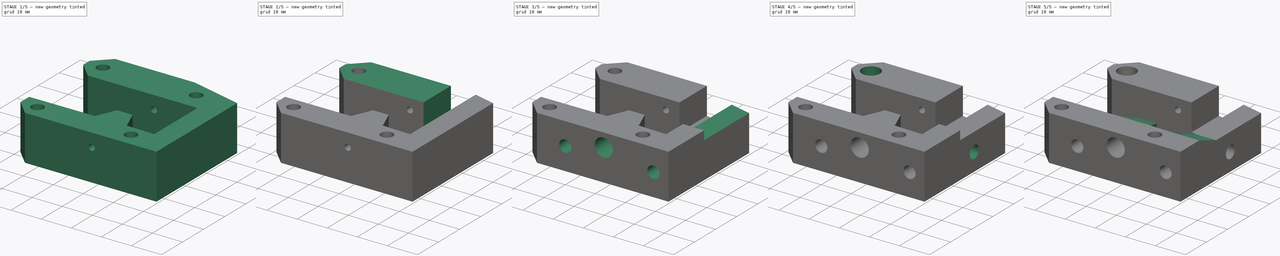
[diagram: build sequence overview — one tinted view per stage of 5, left to right]
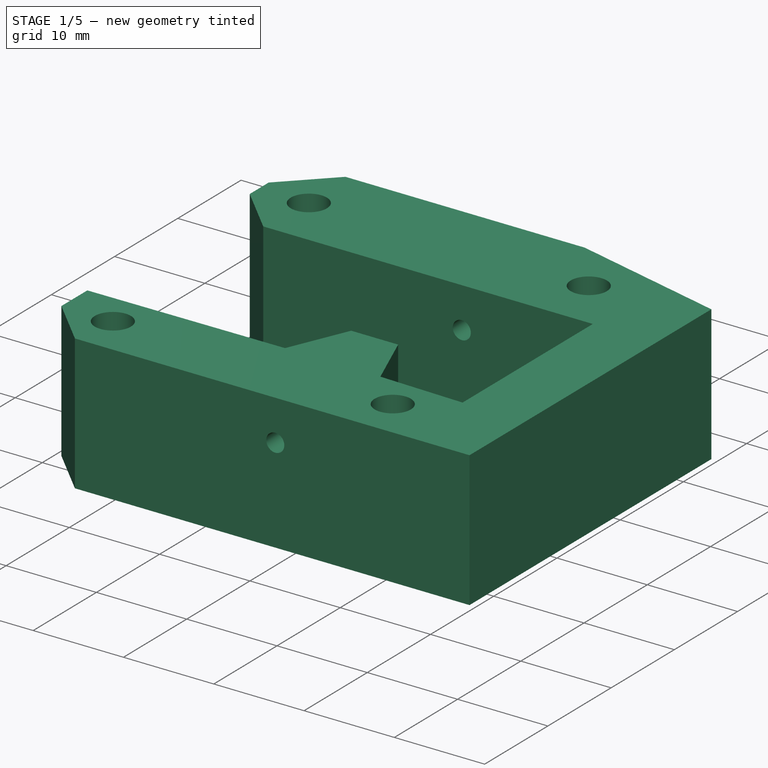
[diagram: stage 1 of 5 — iso view after this stage's code; geometry added in this stage tinted green]
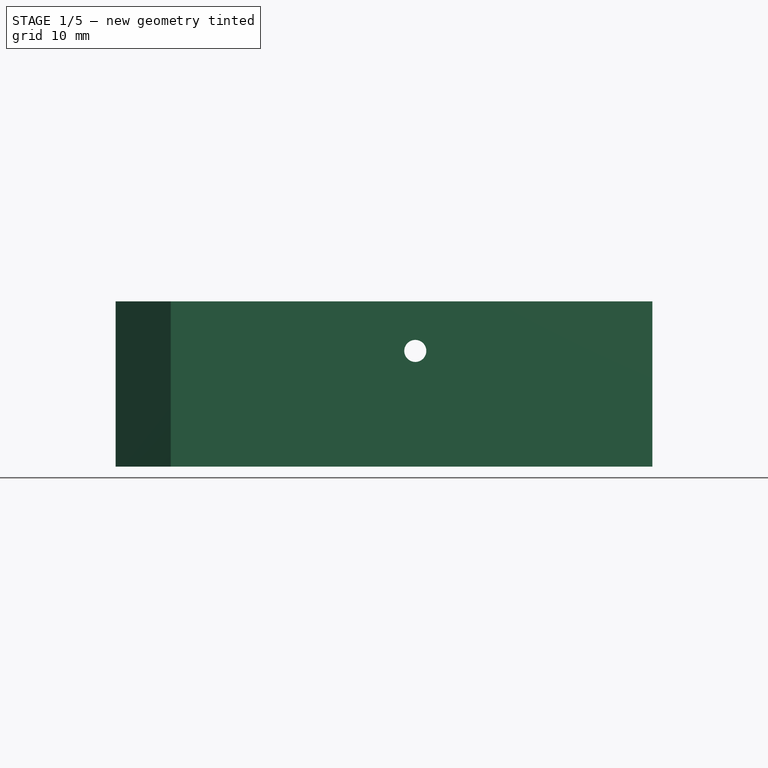
[diagram: stage 1 of 5 — front view after this stage's code; geometry added in this stage tinted green]
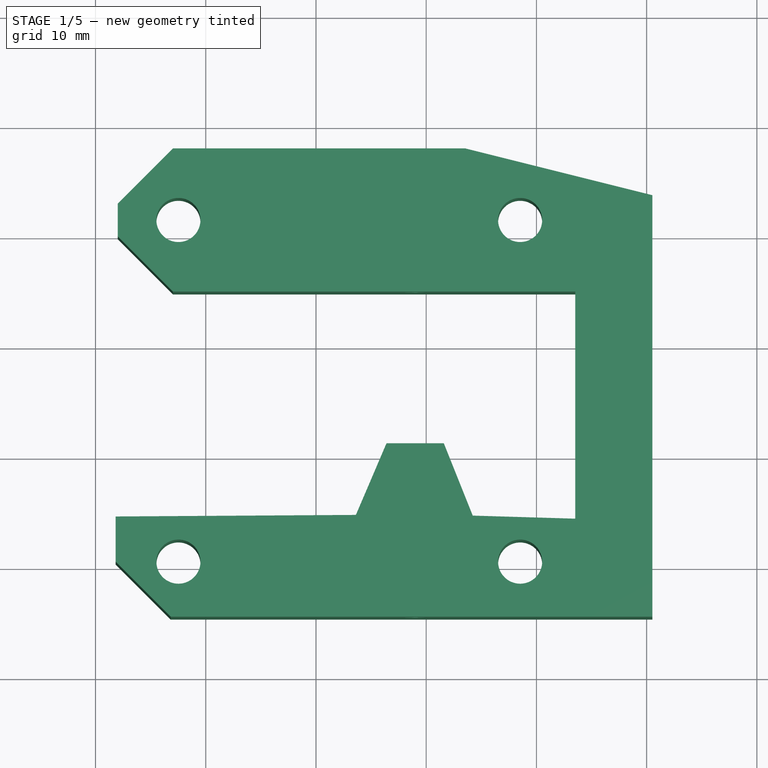
[diagram: stage 1 of 5 — top view after this stage's code; geometry added in this stage tinted green]
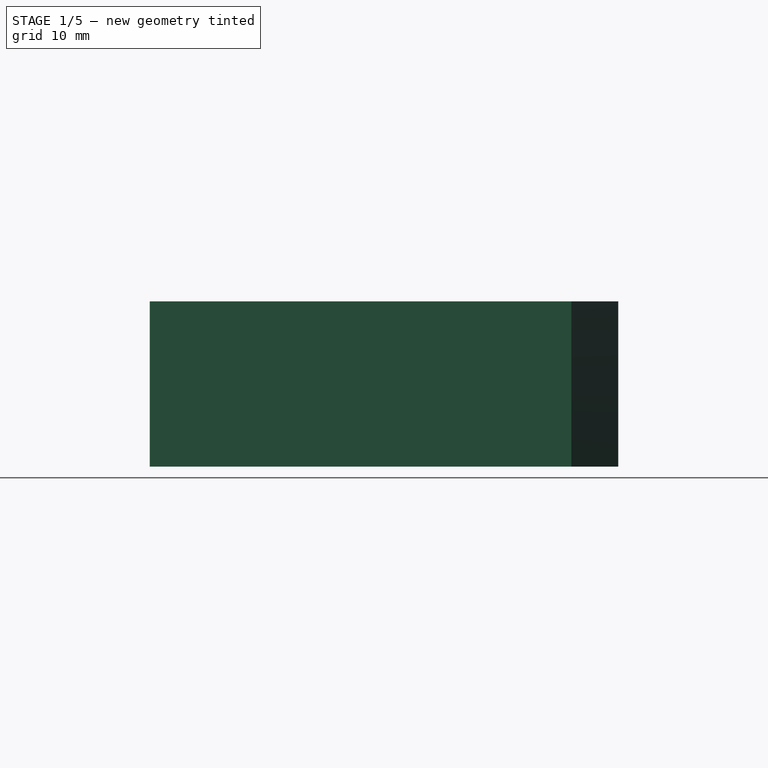
[diagram: stage 1 of 5 — right view after this stage's code; geometry added in this stage tinted green]
FCSTD DOCUMENT  (FreeCAD 0.15R4671 (Git))
Label: Cuerpo extrusor
License: All rights reserved
LicenseURL: http://es.wikipedia.org/wiki/Todos_los_derechos_reservados
objects: Sketcher::SketchObject×16, PartDesign::Pocket×14, Part::Fillet×2, PartDesign::Pad×1
note: 48 computed .brp shape members not serialized (recipe doc carries the construction recipe); baked Part::Feature solids carry a one-line shape summary decoded from their .brp

FEATURE [Sketcher::SketchObject] Sketch
  sketch-geometry (25):
    g0: LineSegment StartX=16.8221 StartY=-44.5735 StartZ=0 EndX=60.5221 EndY=-44.5735 EndZ=0
    g1: LineSegment StartX=60.5221 StartY=-44.5735 StartZ=0 EndX=60.5221 EndY=-6.32348 EndZ=0
    g2: LineSegment StartX=60.5221 StartY=-6.32348 StartZ=0 EndX=43.5221 EndY=-2.07348 EndZ=0
    g3: LineSegment StartX=43.5221 StartY=-2.07348 StartZ=0 EndX=17.0221 EndY=-2.07348 EndZ=0
    g4: LineSegment StartX=17.0221 StartY=-2.07348 StartZ=0 EndX=12.0221 EndY=-7.07348 EndZ=0
    g5: LineSegment StartX=17.0221 StartY=-15.0735 StartZ=0 EndX=43.5221 EndY=-15.0735 EndZ=0
    g6: LineSegment StartX=43.5221 StartY=-15.0735 StartZ=0 EndX=53.5221 EndY=-15.0735 EndZ=0
    g7: LineSegment StartX=53.5221 StartY=-15.0735 StartZ=0 EndX=53.5221 EndY=-35.6735 EndZ=0
    g8: LineSegment StartX=53.5221 StartY=-35.6735 StartZ=0 EndX=44.2221 EndY=-35.3956 EndZ=0
    g9: LineSegment StartX=44.2221 StartY=-35.3956 StartZ=0 EndX=41.5986 EndY=-28.8324 EndZ=0
    g10: LineSegment StartX=41.5986 StartY=-28.8324 StartZ=0 EndX=36.3986 EndY=-28.8324 EndZ=0
    g11: LineSegment StartX=36.3986 StartY=-28.8324 StartZ=0 EndX=33.6221 EndY=-35.3324 EndZ=0
    g12: LineSegment [constr] StartX=43.5221 StartY=-2.07348 StartZ=0 EndX=43.5221 EndY=-15.0735 EndZ=0
    g13: LineSegment [constr] StartX=53.5221 StartY=-18.4917 StartZ=0 EndX=60.5221 EndY=-18.4917 EndZ=0
    g14: LineSegment [constr] StartX=53.5221 StartY=-15.0735 StartZ=0 EndX=53.5221 EndY=-4.57348 EndZ=0
    g15: LineSegment StartX=12.0221 StartY=-7.07348 StartZ=0 EndX=12.0221 EndY=-10.0735 EndZ=0
    g16: LineSegment StartX=12.0221 StartY=-10.0735 StartZ=0 EndX=17.0221 EndY=-15.0735 EndZ=0
    g17: LineSegment [constr] StartX=17.0221 StartY=-15.0735 StartZ=0 EndX=12.0221 EndY=-15.0735 EndZ=0
    g18: LineSegment [constr] StartX=12.0221 StartY=-10.0735 StartZ=0 EndX=12.0221 EndY=-15.0735 EndZ=0
    g19: LineSegment StartX=11.8221 StartY=-35.4735 StartZ=0 EndX=33.6221 EndY=-35.3324 EndZ=0
    g20: LineSegment StartX=11.8221 StartY=-35.4735 StartZ=0 EndX=11.8221 EndY=-39.5735 EndZ=0
    g21: LineSegment StartX=11.8221 StartY=-39.5735 StartZ=0 EndX=16.8221 EndY=-44.5735 EndZ=0
    g22: LineSegment [constr] StartX=11.8221 StartY=-39.5735 StartZ=0 EndX=11.8221 EndY=-44.5735 EndZ=0
    g23: LineSegment [constr] StartX=11.8221 StartY=-44.5735 StartZ=0 EndX=16.8221 EndY=-44.5735 EndZ=0
    g24: LineSegment [constr] StartX=53.5221 StartY=-35.6735 StartZ=0 EndX=53.5221 EndY=-44.5735 EndZ=0
  constraints (70):
    c: Coincident(g0,g1)
    c: Coincident(g1,g2)
    c: Coincident(g2,g3)
    c: Coincident(g3,g4)
    c: Coincident(g5,g6)
    c: Coincident(g6,g7)
    c: Coincident(g7,g8)
    c: Coincident(g8,g9)
    c: Coincident(g9,g10)
    c: Coincident(g10,g11)
    c: Vertical(g7)
    c: Horizontal(g5)
    c: Horizontal(g3)
    c: DistanceY(g12) = -13
    c: Coincident(g12,g5)
    c: Coincident(g12,g2)
    c: PointOnObject(g13,g7)
    c: PointOnObject(g13,g1)
    c: Horizontal(g13)
    c: DistanceX(g13) = 7
    c: DistanceX(g6) = 10
    c: Vertical(g12)
    c: Vertical(g14)
    c: DistanceY(g14) = 10.5
    c: Coincident(g14,g6)
    c: Horizontal(g6)
    c: PointOnObject(g14,g2)
    c: DistanceX(g5,g6) = 36.5
    c: Coincident(g16,g15)
    c: Vertical(g15)
    c: Coincident(g16,g5)
    c: Coincident(g4,g15)
    c: DistanceY(g15) = -3
    c: DistanceX(g8,g7) = 9.3
    c: Angle(g8,g9) = 1.98095
    c: Horizontal(g10)
    c: DistanceY(g11,g10) = 6.5
    c: Equal(g11,g9)
    c: DistanceX(g10,g9) = 5.2
    c: Coincident(g17,g18)
    c: Horizontal(g17)
    c: Vertical(g18)
    c: DistanceX(g17) = -5
    c: Coincident(g18,g15)
    c: Coincident(g17,g5)
    c: Equal(g16,g4)
    c: DistanceY(g17,g15) = 5
    c: Coincident(g19,g11)
    c: DistanceX(g19,g11) = 21.8
    c: Coincident(g20,g21)
    c: Coincident(g20,g19)
    c: DistanceY(g20,g19) = 4.1
    c: Vertical(g20)
    c: Angle(g11,g19) = 1.98095
    c: Coincident(g22,g23)
    c: Vertical(g22)
    c: Horizontal(g23)
    c: DistanceY(g22) = -5
    c: DistanceX(g23) = 5
    c: Coincident(g22,g20)
    c: Coincident(g23,g0)
    c: Coincident(g21,g0)
    c: DistanceX(g0,g0) = 43.7
    c: Vertical(g1)
    c: Angle(g1,g0) = 1.5708
    c: Coincident(g24,g7)
    c: PointOnObject(g24,g0)
    c: Vertical(g24)
    c: DistanceY(g24,g7) = 8.9
    c: DistanceY(g7,g6) = 20.6
FEATURE [PartDesign::Pad] Pad
  Length = 15
  Length2 = 100
  Sketch = -> Sketch
  Type = 0
FEATURE [Sketcher::SketchObject] Sketch001
  Placement = pos=(0,-2.07348,0) rot=(0,0.707107,0.707107;3.14159rad)
  Support = -> Pad [Face6]
  sketch-geometry (3):
    g0: Circle CenterX=-39.0098 CenterY=10.5 CenterZ=0 NormalX=0 NormalY=0 NormalZ=1 Radius=1
    g1: LineSegment [constr] StartX=-39.0098 StartY=10.5 StartZ=0 EndX=-17.0098 EndY=10.5 EndZ=0
    g2: LineSegment [constr] StartX=-39.0098 StartY=10.5 StartZ=0 EndX=-39.0098 EndY=0 EndZ=0
  constraints (8):
    c: Radius(g0) = 1
    c: Horizontal(g1)
    c: DistanceX(g1) = 22
    c: Coincident(g1,g0)
    c: Coincident(g2,g0)
    c: PointOnObject(g2,g-1)
    c: Vertical(g2)
    c: DistanceY(g2) = -10.5
FEATURE [PartDesign::Pocket] Pocket
  Length = 5
  Sketch = -> Sketch001
  Type = 1
FEATURE [Sketcher::SketchObject] Sketch002
  ExternalGeometry = -> [Pocket]
  Placement = pos=(0,0,15) rot=(0,0,1;0rad)
  Support = -> Pocket [Face5]
  sketch-geometry (9):
    g0: Circle CenterX=17.5221 CenterY=-8.57348 CenterZ=0 NormalX=0 NormalY=0 NormalZ=1 Radius=2
    g1: Circle CenterX=48.5221 CenterY=-8.57348 CenterZ=0 NormalX=0 NormalY=0 NormalZ=1 Radius=2
    g2: Circle CenterX=17.5221 CenterY=-39.5735 CenterZ=0 NormalX=0 NormalY=0 NormalZ=1 Radius=2
    g3: Circle CenterX=48.5221 CenterY=-39.5735 CenterZ=0 NormalX=0 NormalY=0 NormalZ=1 Radius=2
    g4: LineSegment [constr] StartX=17.5221 StartY=-8.57348 StartZ=0 EndX=17.5221 EndY=-15.0735 EndZ=0
    g5: LineSegment [constr] StartX=17.5221 StartY=-8.57348 StartZ=0 EndX=48.5221 EndY=-8.57348 EndZ=0
    g6: LineSegment [constr] StartX=17.5221 StartY=-39.5735 StartZ=0 EndX=48.5221 EndY=-39.5735 EndZ=0
    g7: LineSegment [constr] StartX=48.5221 StartY=-8.57348 StartZ=0 EndX=48.5221 EndY=-39.5735 EndZ=0
    g8: LineSegment [constr] StartX=12.0221 StartY=-8.57348 StartZ=0 EndX=17.5221 EndY=-8.57348 EndZ=0
  constraints (24):
    c: Radius(g2) = 2
    c: Equal(g2,g3)
    c: Equal(g2,g1)
    c: Equal(g2,g0)
    c: Coincident(g4,g0)
    c: PointOnObject(g4,g-3)
    c: Vertical(g4)
    c: DistanceY(g4) = -6.5
    c: Coincident(g5,g0)
    c: Coincident(g5,g1)
    c: Horizontal(g5)
    c: DistanceX(g5) = 31
    c: Coincident(g6,g2)
    c: Coincident(g6,g3)
    c: Horizontal(g6)
    c: DistanceX(g6) = 31
    c: Coincident(g7,g1)
    c: Coincident(g7,g3)
    c: Vertical(g7)
    c: DistanceY(g7) = -31
    c: PointOnObject(g8,g-4)
    c: Coincident(g8,g0)
    c: Horizontal(g8)
    c: DistanceX(g8) = 5.5
FEATURE [PartDesign::Pocket] Pocket001
  Length = 5
  Sketch = -> Sketch002
  Type = 1
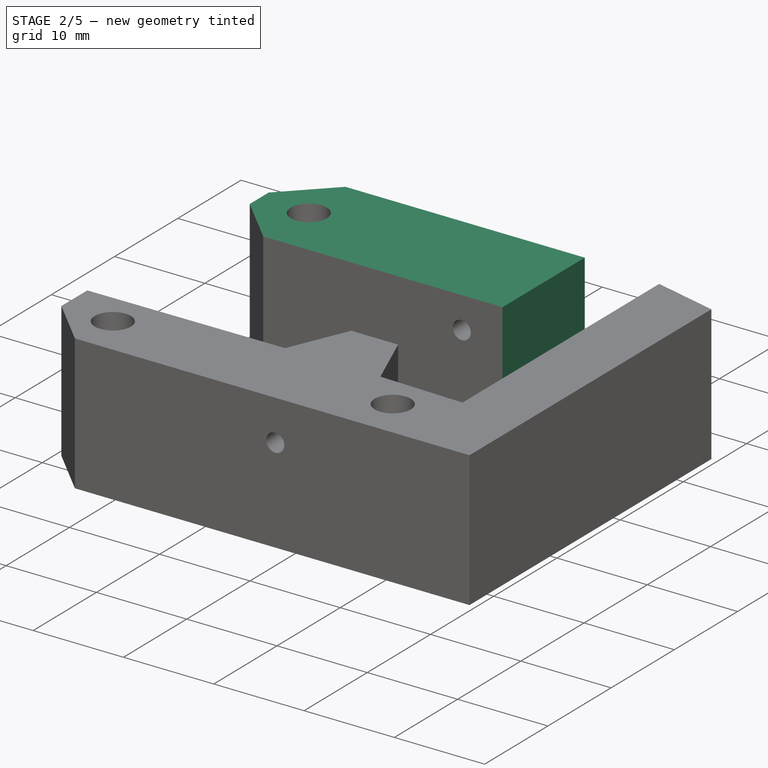
[diagram: stage 2 of 5 — iso view after this stage's code; geometry added in this stage tinted green]
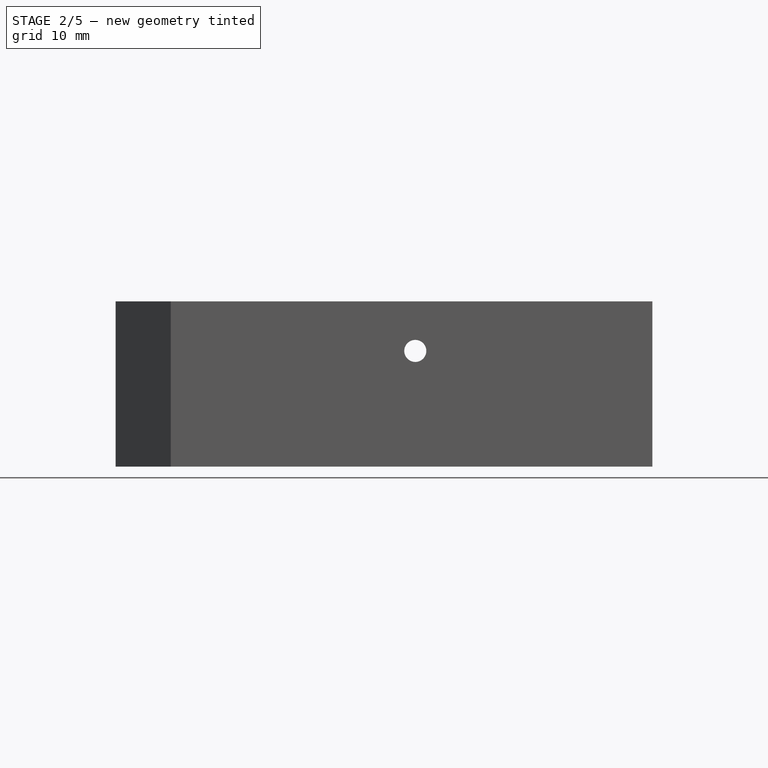
[diagram: stage 2 of 5 — front view after this stage's code; geometry added in this stage tinted green]
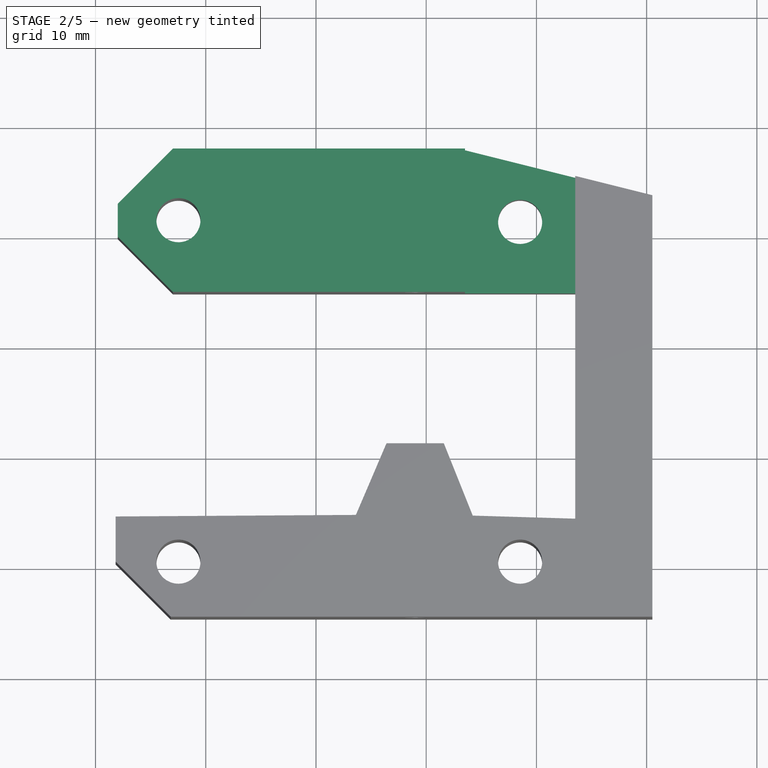
[diagram: stage 2 of 5 — top view after this stage's code; geometry added in this stage tinted green]
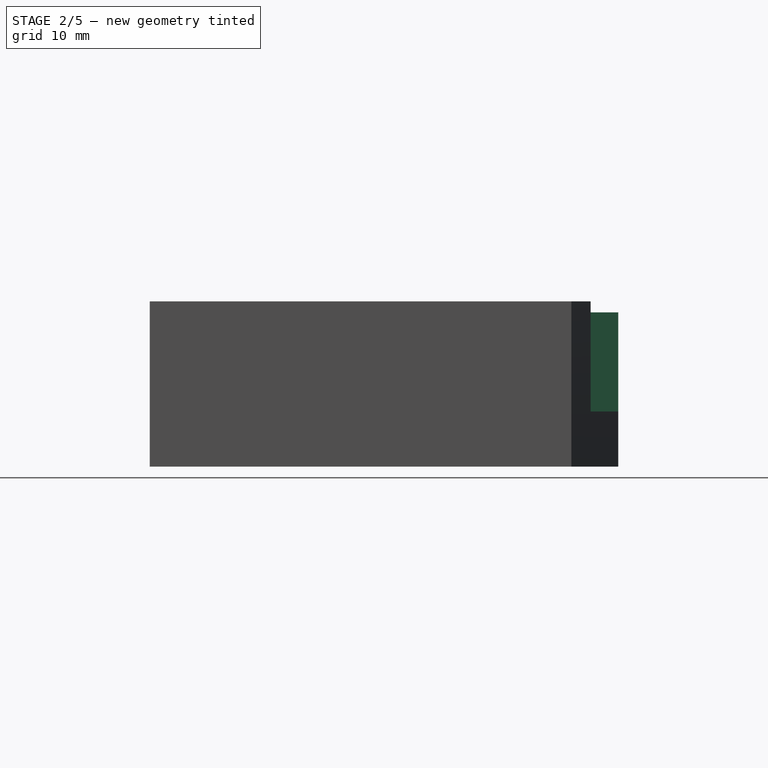
[diagram: stage 2 of 5 — right view after this stage's code; geometry added in this stage tinted green]
FEATURE [Part::Fillet] Fillet
  Base = -> Pocket001
  Edges = 1 edges r=0.25: [Edge57]
FEATURE [Part::Fillet] Fillet001
  Base = -> Fillet
  Edges = 1 edges r=0.25: [Edge60]
FEATURE [Sketcher::SketchObject] Sketch003
  ExternalGeometry = -> [Fillet001]
  Placement = pos=(0,0,15) rot=(0,0,1;0rad)
  Support = -> Fillet001 [Face5]
  sketch-geometry (4):
    g0: LineSegment StartX=43.5221 StartY=-2.07348 StartZ=0 EndX=43.5221 EndY=-15.0735 EndZ=0
    g1: LineSegment StartX=43.5221 StartY=-15.0735 StartZ=0 EndX=53.5221 EndY=-15.0735 EndZ=0
    g2: LineSegment StartX=53.5221 StartY=-15.0735 StartZ=0 EndX=53.5221 EndY=-4.57348 EndZ=0
    g3: LineSegment StartX=43.5221 StartY=-2.07348 StartZ=0 EndX=53.5221 EndY=-4.57348 EndZ=0
  constraints (10):
    c: Coincident(g0,g-6)
    c: Vertical(g0)
    c: Coincident(g1,g0)
    c: Coincident(g1,g-5)
    c: Horizontal(g1)
    c: Coincident(g2,g1)
    c: PointOnObject(g2,g-6)
    c: Vertical(g2)
    c: Coincident(g3,g0)
    c: Coincident(g3,g2)
FEATURE [PartDesign::Pocket] Pocket002
  Length = 10
  Sketch = -> Sketch003
  Type = 0
FEATURE [Sketcher::SketchObject] Sketch004
  ExternalGeometry = -> [Pocket002]
  Placement = pos=(0,0,15) rot=(0,0,1;0rad)
  Support = -> Pocket002 [Face26]
  sketch-geometry (6):
    g0: LineSegment StartX=12.0221 StartY=-7.07348 StartZ=0 EndX=17.0221 EndY=-2.07348 EndZ=0
    g1: LineSegment StartX=17.0221 StartY=-2.07348 StartZ=0 EndX=43.5221 EndY=-2.07348 EndZ=0
    g2: LineSegment StartX=43.5221 StartY=-2.07348 StartZ=0 EndX=43.5221 EndY=-15.0735 EndZ=0
    g3: LineSegment StartX=43.5221 StartY=-15.0735 StartZ=0 EndX=17.0221 EndY=-15.0735 EndZ=0
    g4: LineSegment StartX=17.0221 StartY=-15.0735 StartZ=0 EndX=12.0221 EndY=-10.0735 EndZ=0
    g5: LineSegment StartX=12.0221 StartY=-10.0735 StartZ=0 EndX=12.0221 EndY=-7.07348 EndZ=0
  constraints (12):
    c: Coincident(g-4,g0)
    c: Coincident(g0,g-7)
    c: Coincident(g0,g1)
    c: Coincident(g1,g-8)
    c: Coincident(g1,g2)
    c: Coincident(g2,g-8)
    c: Coincident(g2,g3)
    c: Coincident(g3,g-6)
    c: Coincident(g3,g4)
    c: Coincident(g4,g-5)
    c: Coincident(g4,g5)
    c: Coincident(g5,g0)
FEATURE [PartDesign::Pocket] Pocket003
  Length = 1
  Sketch = -> Sketch004
  Type = 0
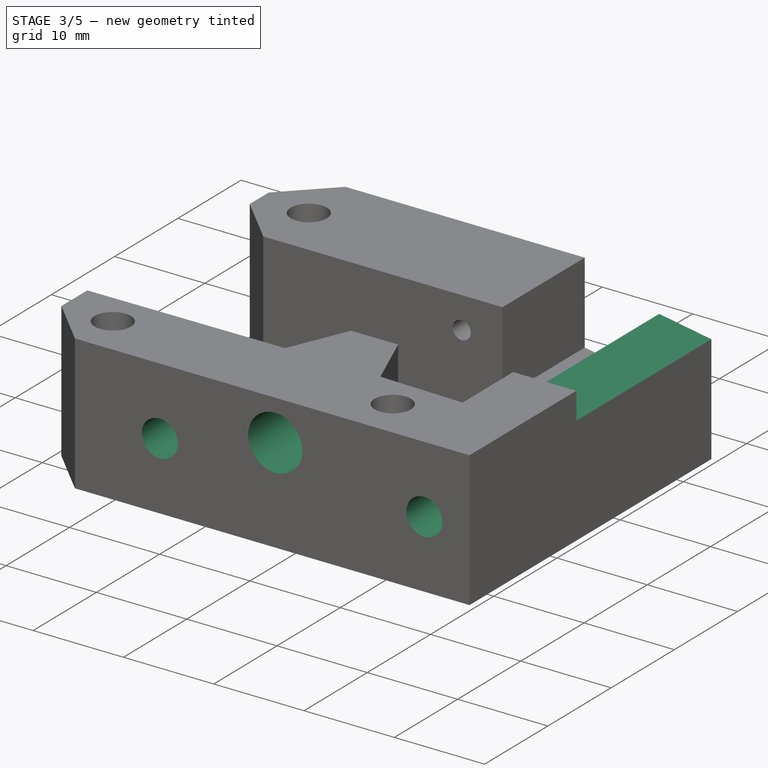
[diagram: stage 3 of 5 — iso view after this stage's code; geometry added in this stage tinted green]
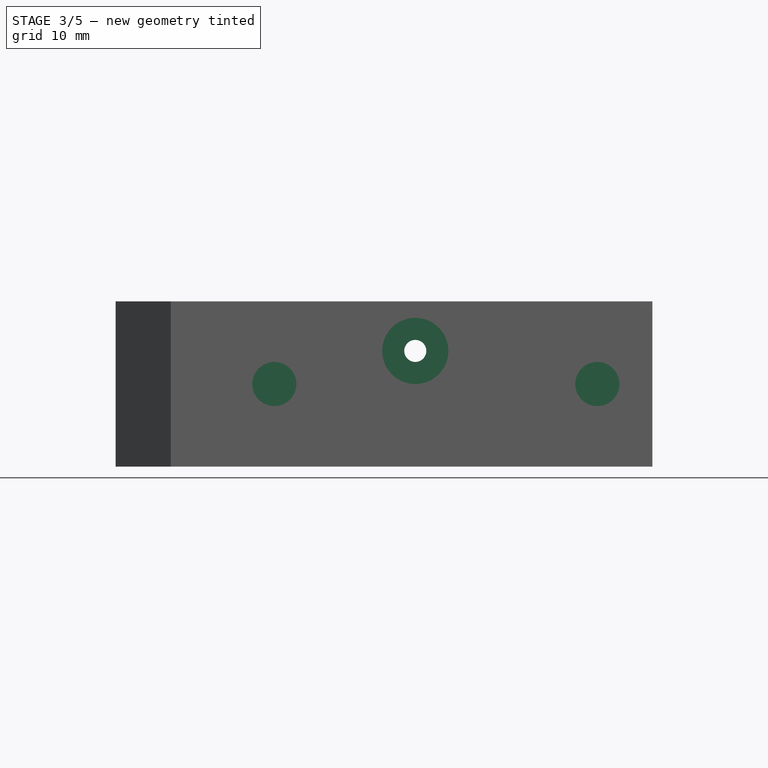
[diagram: stage 3 of 5 — front view after this stage's code; geometry added in this stage tinted green]
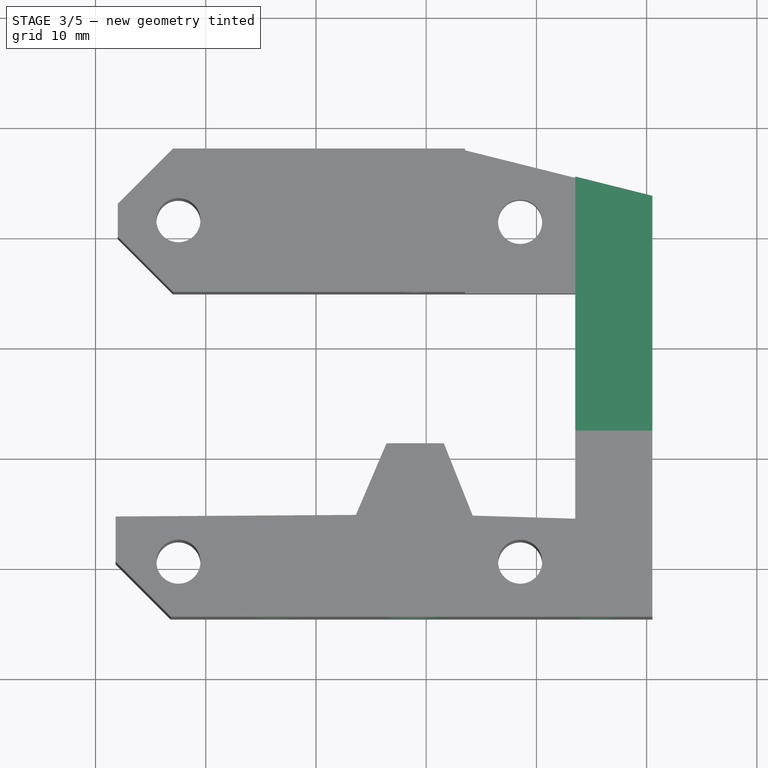
[diagram: stage 3 of 5 — top view after this stage's code; geometry added in this stage tinted green]
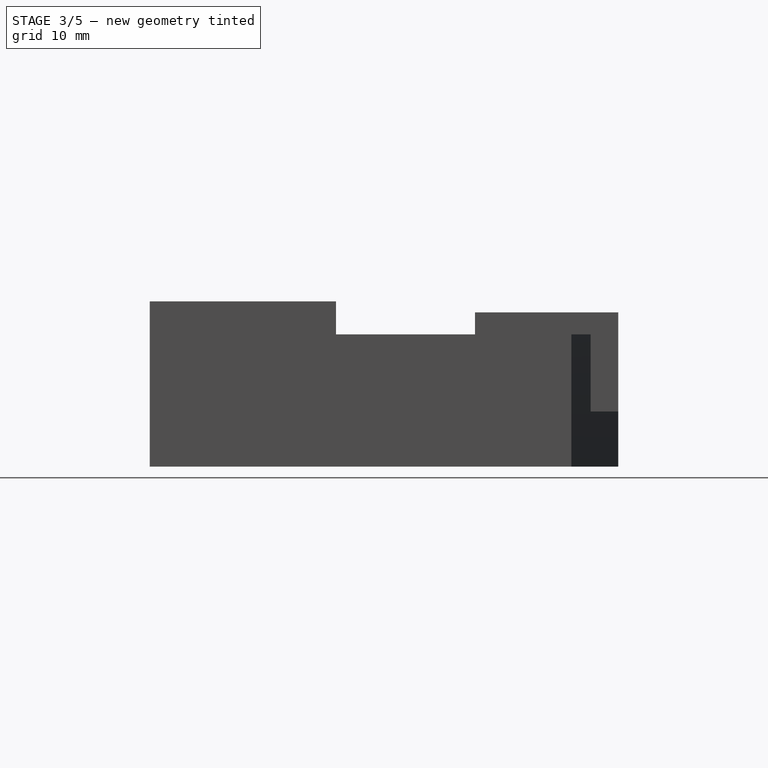
[diagram: stage 3 of 5 — right view after this stage's code; geometry added in this stage tinted green]
FEATURE [Sketcher::SketchObject] Sketch005
  ExternalGeometry = -> [Pocket003]
  Placement = pos=(0,-44.5735,0) rot=(1,0,0;1.5708rad)
  Support = -> Pocket003 [Face12]
  sketch-geometry (7):
    g0: Circle CenterX=26.2221 CenterY=7.5 CenterZ=0 NormalX=0 NormalY=0 NormalZ=1 Radius=2
    g1: Circle CenterX=55.5221 CenterY=7.5 CenterZ=0 NormalX=0 NormalY=0 NormalZ=1 Radius=2
    g2: Circle CenterX=39.0098 CenterY=10.5 CenterZ=0 NormalX=0 NormalY=0 NormalZ=1 Radius=3
    g3: LineSegment [constr] StartX=55.5221 StartY=7.5 StartZ=0 EndX=60.5221 EndY=7.5 EndZ=0
    g4: LineSegment [constr] StartX=55.5221 StartY=7.5 StartZ=0 EndX=26.2221 EndY=7.5 EndZ=0
    g5: LineSegment [constr] StartX=26.2227 StartY=7.56674 StartZ=0 EndX=16.8221 EndY=7.56674 EndZ=0
    g6: LineSegment [constr] StartX=48.4282 StartY=7.5 StartZ=0 EndX=48.4282 EndY=0 EndZ=0
  constraints (18):
    c: Coincident(g2,g-3)
    c: Coincident(g3,g1)
    c: PointOnObject(g3,g-7)
    c: Horizontal(g3)
    c: DistanceX(g3) = 5
    c: Coincident(g4,g1)
    c: Coincident(g4,g0)
    c: Horizontal(g4)
    c: DistanceX(g4) = -29.3
    c: Radius(g0) = 2
    c: Equal(g0,g1)
    c: PointOnObject(g5,g-5)
    c: Horizontal(g5)
    c: Radius(g2) = 3
    c: PointOnObject(g6,g4)
    c: PointOnObject(g6,g-6)
    c: Vertical(g6)
    c: DistanceY(g6) = -7.5
FEATURE [PartDesign::Pocket] Pocket004
  Length = 7
  Sketch = -> Sketch005
  Type = 0
FEATURE [Sketcher::SketchObject] Sketch006
  ExternalGeometry = -> [Pocket004]
  Placement = pos=(60.5221,0,0) rot=(0.57735,0.57735,0.57735;2.0944rad)
  Support = -> Pocket004 [Face13]
  sketch-geometry (6):
    g0: LineSegment [constr] StartX=-35.6735 StartY=15 StartZ=0 EndX=-44.5735 EndY=15 EndZ=0
    g1: LineSegment [constr] StartX=-27.6746 StartY=15 StartZ=0 EndX=-27.6746 EndY=12 EndZ=0
    g2: LineSegment StartX=-27.6746 StartY=12 StartZ=0 EndX=-6.32348 EndY=12 EndZ=0
    g3: LineSegment StartX=-6.32405 StartY=15 StartZ=0 EndX=-6.32348 EndY=12 EndZ=0
    g4: LineSegment StartX=-27.6746 StartY=12 StartZ=0 EndX=-27.6746 EndY=15 EndZ=0
    g5: LineSegment StartX=-27.6746 StartY=15 StartZ=0 EndX=-6.32405 EndY=15 EndZ=0
  constraints (14):
    c: Horizontal(g0)
    c: DistanceX(g0) = -8.9
    c: Coincident(g0,g-3)
    c: Vertical(g1)
    c: DistanceY(g1) = -3
    c: Coincident(g2,g1)
    c: PointOnObject(g2,g-5)
    c: Horizontal(g2)
    c: Coincident(g3,g2)
    c: Coincident(g4,g1)
    c: Coincident(g4,g1)
    c: Coincident(g5,g1)
    c: Coincident(g5,g3)
    c: Horizontal(g5)
FEATURE [PartDesign::Pocket] Pocket005
  Length = 7
  Sketch = -> Sketch006
  Type = 0
FEATURE [Sketcher::SketchObject] Sketch007
  ExternalGeometry = -> [Pocket005]
  Placement = pos=(0,0,15) rot=(0,0,1;0rad)
  Support = -> Pocket005 [Face33]
  sketch-geometry (3):
    g0: LineSegment StartX=53.5221 StartY=-4.57348 StartZ=0 EndX=53.5221 EndY=-6.32348 EndZ=0
    g1: LineSegment StartX=53.5221 StartY=-6.32348 StartZ=0 EndX=60.5221 EndY=-6.32348 EndZ=0
    g2: LineSegment StartX=60.5221 StartY=-6.32348 StartZ=0 EndX=53.5221 EndY=-4.57348 EndZ=0
  constraints (6):
    c: Coincident(g-4,g0)
    c: Coincident(g0,g-5)
    c: Coincident(g0,g1)
    c: Coincident(g1,g-5)
    c: Coincident(g1,g2)
    c: Coincident(g2,g0)
FEATURE [PartDesign::Pocket] Pocket006
  Length = 3
  Sketch = -> Sketch007
  Type = 0
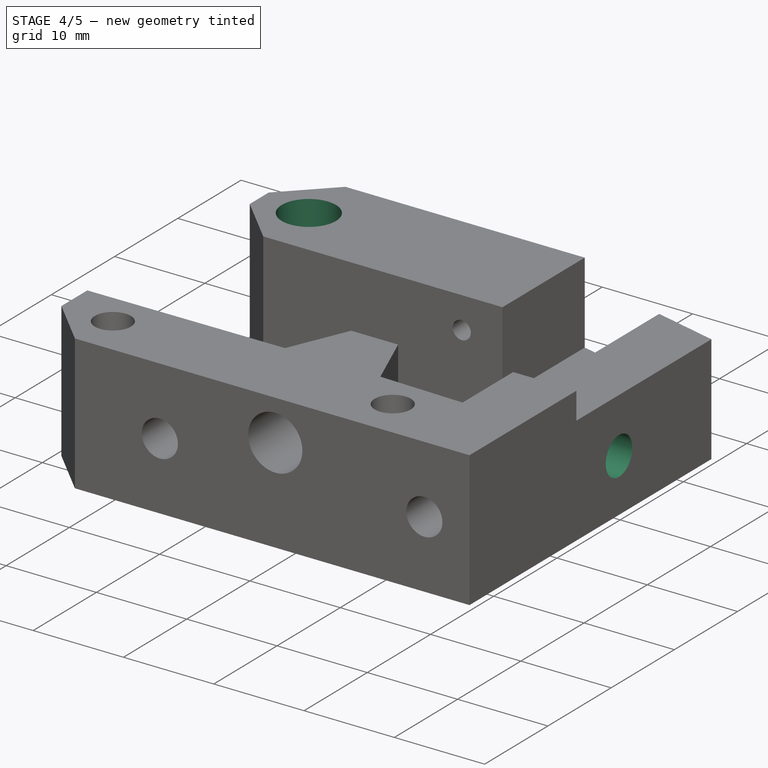
[diagram: stage 4 of 5 — iso view after this stage's code; geometry added in this stage tinted green]
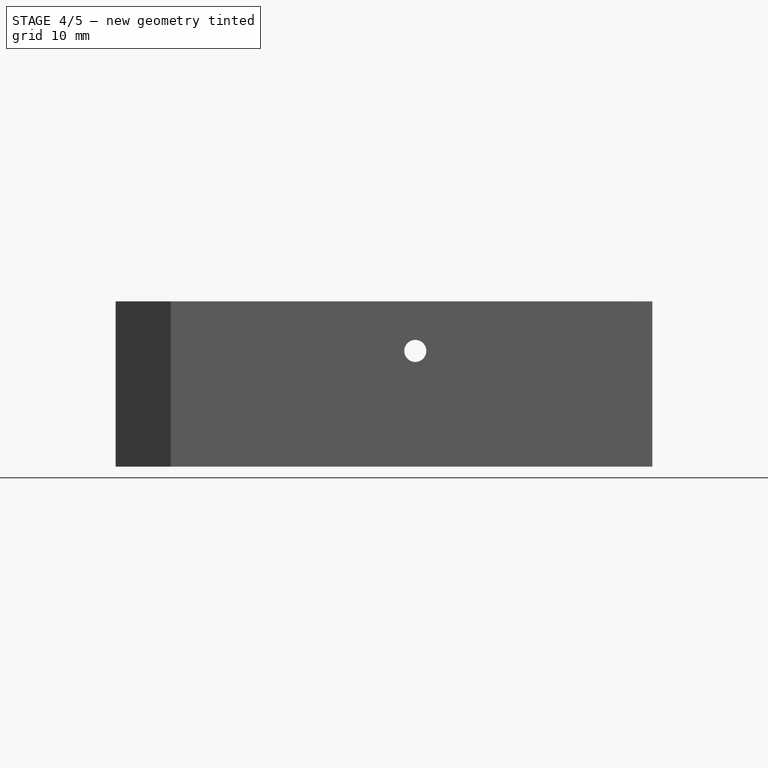
[diagram: stage 4 of 5 — front view after this stage's code; geometry added in this stage tinted green]
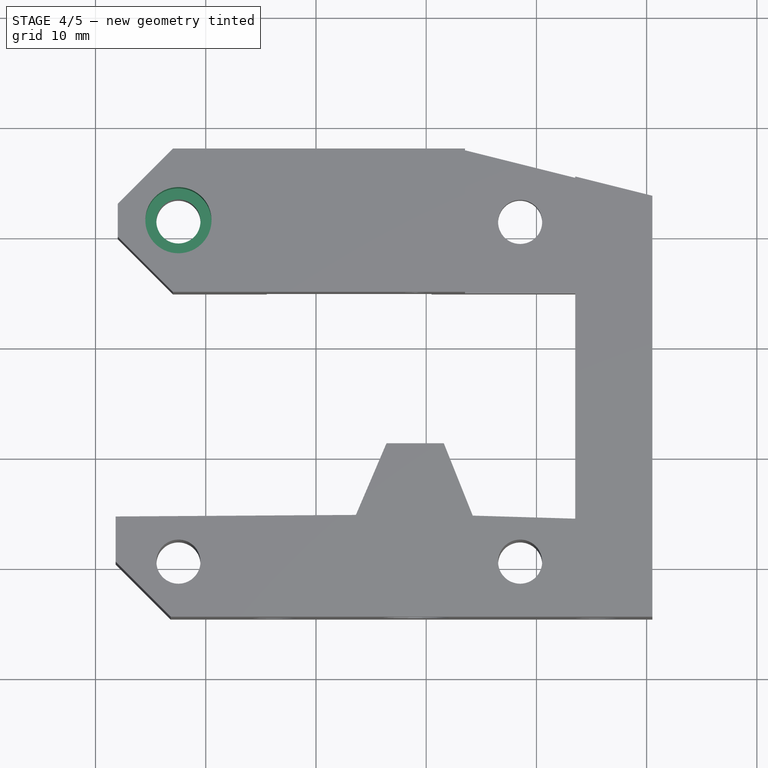
[diagram: stage 4 of 5 — top view after this stage's code; geometry added in this stage tinted green]
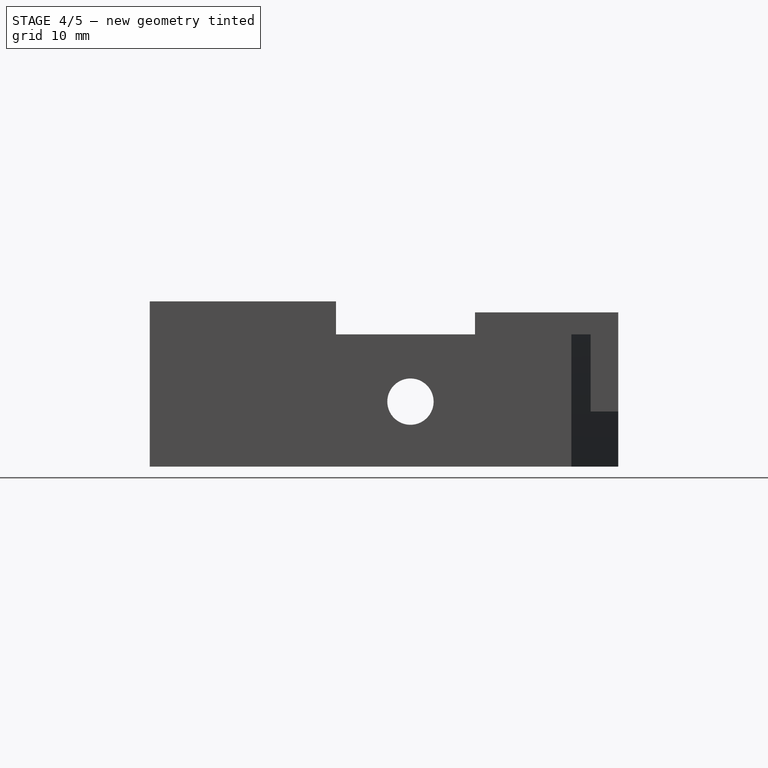
[diagram: stage 4 of 5 — right view after this stage's code; geometry added in this stage tinted green]
FEATURE [Sketcher::SketchObject] Sketch008
  ExternalGeometry = -> [Pocket006]
  Placement = pos=(60.5221,0,0) rot=(0.57735,0.57735,0.57735;2.0944rad)
  Support = -> Pocket006 [Face13]
  sketch-geometry (3):
    g0: Circle CenterX=-20.9235 CenterY=5.9 CenterZ=0 NormalX=0 NormalY=0 NormalZ=1 Radius=2.1
    g1: LineSegment [constr] StartX=-20.9235 StartY=5.9 StartZ=0 EndX=-6.32348 EndY=5.9 EndZ=0
    g2: LineSegment [constr] StartX=-20.9235 StartY=5.9 StartZ=0 EndX=-20.9235 EndY=0 EndZ=0
  constraints (7):
    c: Coincident(g1,g0)
    c: Horizontal(g1)
    c: DistanceX(g1) = 14.6
    c: Coincident(g2,g0)
    c: Vertical(g2)
    c: DistanceY(g2) = -5.9
    c: Radius(g0) = 2.1
FEATURE [PartDesign::Pocket] Pocket007
  Length = 7
  Sketch = -> Sketch008
  Type = 0
FEATURE [Sketcher::SketchObject] Sketch009
  ExternalGeometry = -> [Pocket007]
  Placement = pos=(0,0,0) rot=(1,0,0;3.14159rad)
  Support = -> Pocket007 [Face4]
  sketch-geometry (5):
    g0: LineSegment StartX=33.6221 StartY=35.3324 StartZ=0 EndX=44.2221 EndY=35.3956 EndZ=0
    g1: LineSegment StartX=33.6221 StartY=35.3324 StartZ=0 EndX=36.3986 EndY=28.8324 EndZ=0
    g2: LineSegment StartX=36.3986 StartY=28.8324 StartZ=0 EndX=41.5986 EndY=28.8324 EndZ=0
    g3: GeomPoint [constr] X=41.5986 Y=28.8324 Z=0
    g4: LineSegment StartX=41.5986 StartY=28.8324 StartZ=0 EndX=44.2221 EndY=35.3956 EndZ=0
  constraints (9):
    c: Coincident(g0,g-4)
    c: Coincident(g0,g-5)
    c: Coincident(g1,g0)
    c: Coincident(g1,g-4)
    c: Coincident(g2,g1)
    c: Coincident(g2,g-5)
    c: Coincident(g3,g2)
    c: Coincident(g4,g2)
    c: Coincident(g4,g0)
FEATURE [PartDesign::Pocket] Pocket008
  Length = 6
  Sketch = -> Sketch009
  Type = 0
FEATURE [Sketcher::SketchObject] Sketch010
  ExternalGeometry = -> [Pocket008]
  Placement = pos=(0,0,14) rot=(0,0,1;0rad)
  Support = -> Pocket008 [Face37]
  sketch-geometry (1):
    g0: Circle CenterX=17.5221 CenterY=-8.57348 CenterZ=0 NormalX=0 NormalY=0 NormalZ=1 Radius=3
  constraints (2):
    c: Coincident(g0,g-3)
    c: Radius(g0) = 3
FEATURE [PartDesign::Pocket] Pocket009
  Length = 6.5
  Sketch = -> Sketch010
  Type = 0
FEATURE [Sketcher::SketchObject] Sketch011
  ExternalGeometry = -> [Pocket009]
  Placement = pos=(0,0,0) rot=(1,0,0;3.14159rad)
  Support = -> Pocket009 [Face21]
  sketch-geometry (8):
    g0: LineSegment [constr] StartX=36.5221 StartY=15.0735 StartZ=0 EndX=36.5221 EndY=12.0735 EndZ=0
    g1: LineSegment StartX=40.5221 StartY=15.0735 StartZ=0 EndX=36.5221 EndY=12.0735 EndZ=0
    g2: LineSegment StartX=36.5221 StartY=12.0735 StartZ=0 EndX=29.5221 EndY=12.0735 EndZ=0
    g3: LineSegment [constr] StartX=29.5106 StartY=12.0771 StartZ=0 EndX=29.5106 EndY=15.0435 EndZ=0
    g4: LineSegment [constr] StartX=29.5106 StartY=15.0435 StartZ=0 EndX=25.5106 EndY=15.0735 EndZ=0
    g5: LineSegment StartX=25.5106 StartY=15.0735 StartZ=0 EndX=29.5221 EndY=12.0735 EndZ=0
    g6: LineSegment StartX=25.5106 StartY=15.0735 StartZ=0 EndX=40.5221 EndY=15.0735 EndZ=0
    g7: LineSegment StartX=25.5106 StartY=15.0735 StartZ=0 EndX=40.5221 EndY=15.0735 EndZ=0
  constraints (14):
    c: Vertical(g0)
    c: DistanceY(g0) = -3
    c: Coincident(g1,g0)
    c: Coincident(g2,g0)
    c: Horizontal(g2)
    c: DistanceX(g2) = -7
    c: Vertical(g3)
    c: Coincident(g4,g3)
    c: DistanceX(g4) = -4
    c: Coincident(g5,g4)
    c: Coincident(g5,g2)
    c: Coincident(g6,g4)
    c: Coincident(g7,g4)
    c: Horizontal(g6)
FEATURE [PartDesign::Pocket] Pocket010
  Length = 2.5
  Sketch = -> Sketch011
  Type = 0
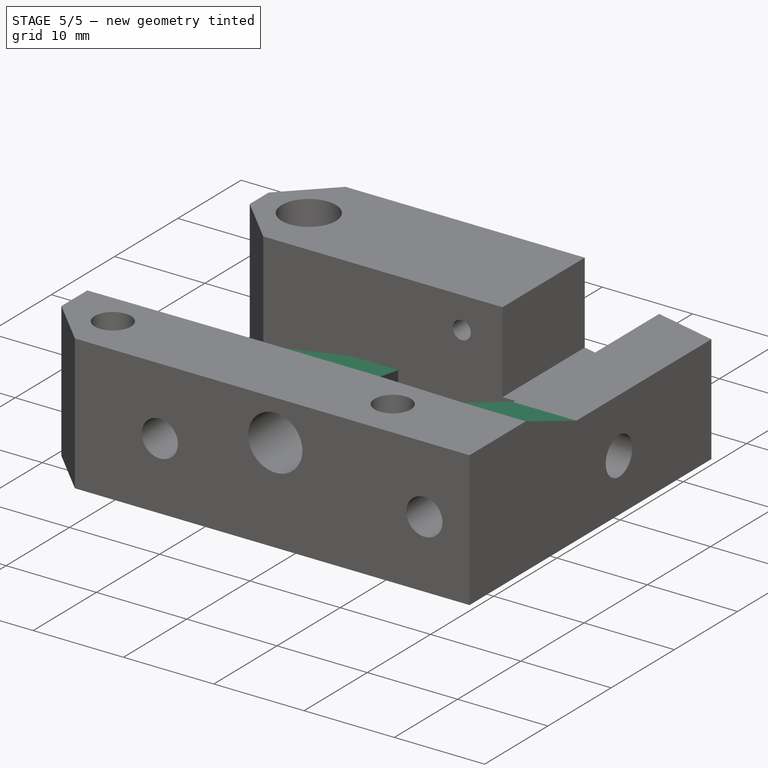
[diagram: stage 5 of 5 — iso view after this stage's code; geometry added in this stage tinted green]
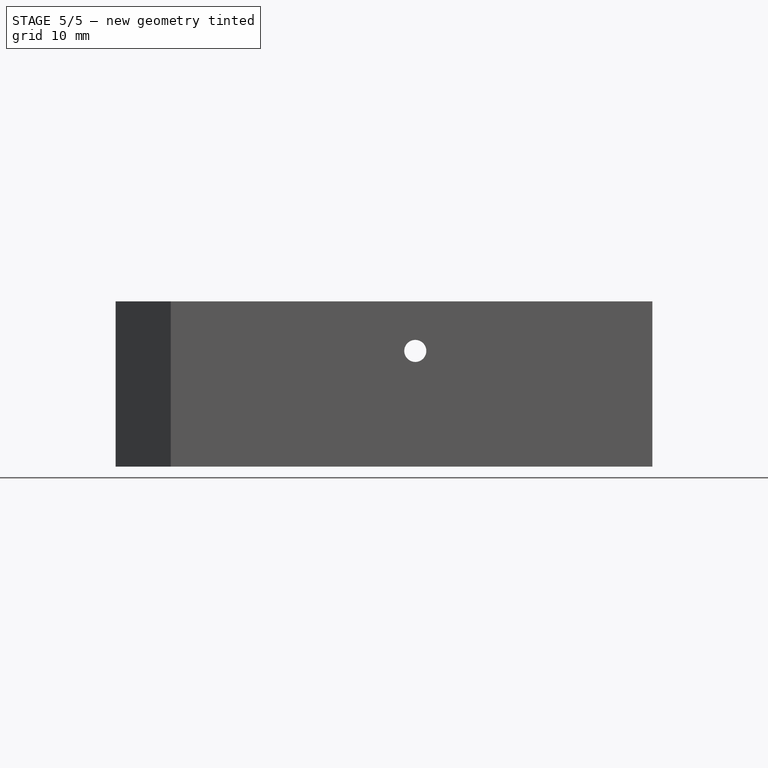
[diagram: stage 5 of 5 — front view after this stage's code; geometry added in this stage tinted green]
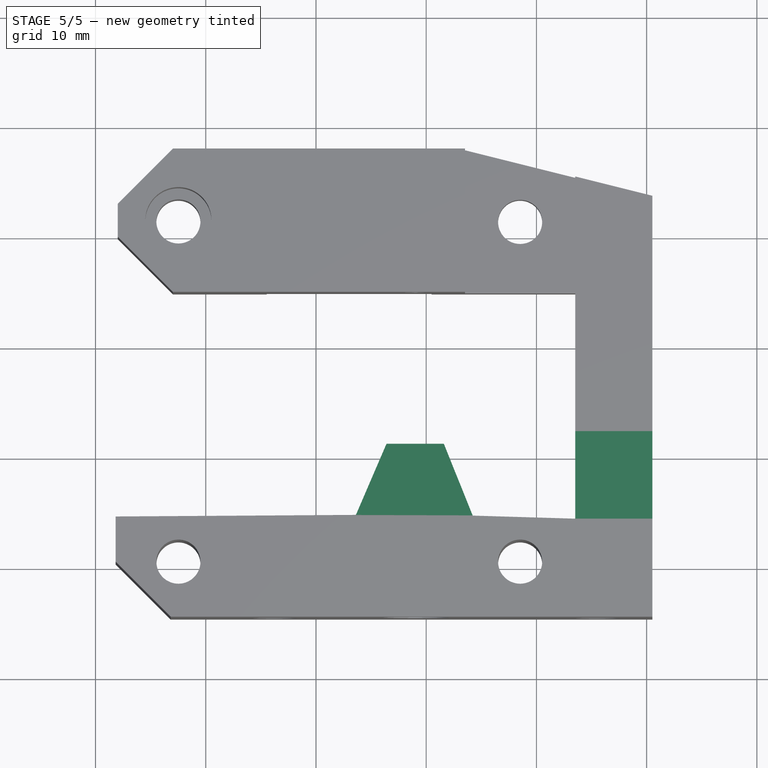
[diagram: stage 5 of 5 — top view after this stage's code; geometry added in this stage tinted green]
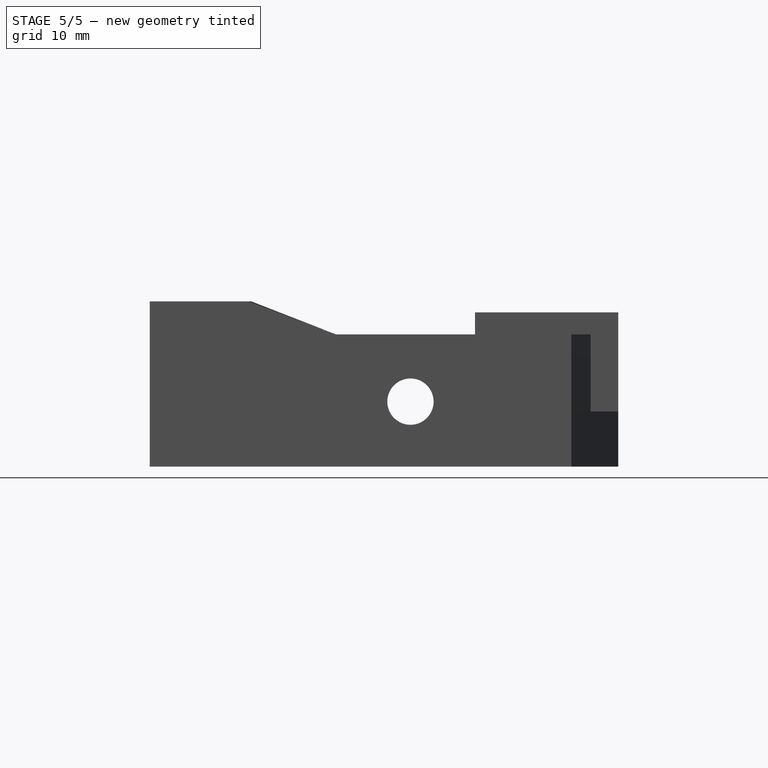
[diagram: stage 5 of 5 — right view after this stage's code; geometry added in this stage tinted green]
FEATURE [Sketcher::SketchObject] Sketch012
  Placement = pos=(41.1976,-17.5972,0) rot=(-0.423042,0.640717,0.640717;3.94202rad)
  Support = -> Pocket010 [Face3]
FEATURE [Sketcher::SketchObject] Sketch013
  ExternalGeometry = -> [Pocket010]
  Placement = pos=(60.5221,0,0) rot=(0.57735,0.57735,0.57735;2.0944rad)
  Support = -> Pocket010 [Face12]
  sketch-geometry (4):
    g0: LineSegment [constr] StartX=-44.5735 StartY=15 StartZ=0 EndX=-35.3735 EndY=15 EndZ=0
    g1: LineSegment StartX=-35.3735 StartY=15 StartZ=0 EndX=-27.6735 EndY=15 EndZ=0
    g2: LineSegment StartX=-27.6735 StartY=15 StartZ=0 EndX=-27.6735 EndY=12 EndZ=0
    g3: LineSegment StartX=-35.3735 StartY=15 StartZ=0 EndX=-27.6735 EndY=12 EndZ=0
  constraints (11):
    c: Coincident(g0,g-3)
    c: Horizontal(g0)
    c: DistanceX(g0) = 9.2
    c: Coincident(g1,g0)
    c: Horizontal(g1)
    c: DistanceX(g1) = 7.7
    c: Coincident(g2,g1)
    c: Vertical(g2)
    c: DistanceY(g2) = -3
    c: Coincident(g3,g0)
    c: Coincident(g3,g2)
FEATURE [PartDesign::Pocket] Pocket011
  Length = 14
  Sketch = -> Sketch013
  Type = 1
FEATURE [Sketcher::SketchObject] Sketch014
  ExternalGeometry = -> [Pocket011]
  Placement = pos=(60.5221,0,0) rot=(0.57735,0.57735,0.57735;2.0944rad)
  Support = -> Pocket011 [Face16]
  sketch-geometry (4):
    g0: LineSegment [constr] StartX=-44.5735 StartY=15 StartZ=0 EndX=-35.6735 EndY=15 EndZ=0
    g1: LineSegment StartX=-35.6735 StartY=15 StartZ=0 EndX=-27.6735 EndY=12 EndZ=0
    g2: LineSegment StartX=-35.6735 StartY=15 StartZ=0 EndX=-35.2978 EndY=15 EndZ=0
    g3: LineSegment StartX=-35.2978 StartY=15 StartZ=0 EndX=-27.6735 EndY=12 EndZ=0
  constraints (9):
    c: Coincident(g0,g-3)
    c: Horizontal(g0)
    c: DistanceX(g0) = 8.9
    c: Coincident(g1,g0)
    c: Coincident(g1,g-4)
    c: Coincident(g2,g0)
    c: Horizontal(g2)
    c: Coincident(g3,g2)
    c: Coincident(g3,g1)
FEATURE [PartDesign::Pocket] Pocket012
  Length = 7
  Sketch = -> Sketch014
  Type = 0
FEATURE [Sketcher::SketchObject] Sketch015
  ExternalGeometry = -> [Pocket012]
  Placement = pos=(0,-2.07348,0) rot=(0,0.707107,0.707107;3.14159rad)
  Support = -> Pocket012 [Face23]
  sketch-geometry (21):
    g0: LineSegment [constr] StartX=-23.5921 StartY=14 StartZ=0 EndX=-23.5921 EndY=12.6 EndZ=0
    g1: LineSegment StartX=-23.5921 StartY=12.6 StartZ=0 EndX=-28.6507 EndY=10.1976 EndZ=0
    g2: LineSegment StartX=-28.6507 StartY=10.1976 StartZ=0 EndX=-28.6507 EndY=4.5976 EndZ=0
    g3: LineSegment StartX=-28.6507 StartY=4.5976 StartZ=0 EndX=-23.5921 EndY=1.71855 EndZ=0
    g4: LineSegment StartX=-23.5921 StartY=1.71855 StartZ=0 EndX=-18.5221 EndY=4.5976 EndZ=0
    g5: LineSegment StartX=-18.5221 StartY=4.5976 StartZ=0 EndX=-18.5221 EndY=10.1976 EndZ=0
    g6: LineSegment [constr] StartX=-28.6507 StartY=10.1976 StartZ=0 EndX=-18.5221 EndY=10.1976 EndZ=0
    g7: LineSegment [constr] StartX=-28.6507 StartY=4.5976 StartZ=0 EndX=-18.5221 EndY=4.5976 EndZ=0
    g8: LineSegment [constr] StartX=-23.5921 StartY=12.6 StartZ=0 EndX=-23.5921 EndY=1.71855 EndZ=0
    g9: LineSegment StartX=-23.5921 StartY=12.6 StartZ=0 EndX=-21.8781 EndY=11.7803 EndZ=0
    g10: LineSegment StartX=-20.606 StartY=11.1957 StartZ=0 EndX=-20.606 EndY=6.64707 EndZ=0
    g11: LineSegment StartX=-21.8781 StartY=11.7803 StartZ=0 EndX=-21.8781 EndY=9.48025 EndZ=0
    g12: LineSegment StartX=-21.8521 StartY=8.30107 StartZ=0 EndX=-23.2221 EndY=8.30107 EndZ=0
    g13: LineSegment StartX=-21.8521 StartY=8.30107 StartZ=0 EndX=-21.8521 EndY=7.08778 EndZ=0
    g14: ArcOfCircle CenterX=-23.5261 CenterY=6.57768 CenterZ=0 NormalX=0 NormalY=0 NormalZ=1 Radius=1.75 StartAngle=1.39618 EndAngle=6.57896
    g15: LineSegment [constr] StartX=-28.6507 StartY=10.1976 StartZ=0 EndX=-28.6507 EndY=14 EndZ=0
    g16: LineSegment [constr] StartX=-18.5221 StartY=10.1976 StartZ=0 EndX=-18.5221 EndY=14 EndZ=0
    g17: LineSegment [constr] StartX=-18.5221 StartY=10.1976 StartZ=0 EndX=-17.0221 EndY=10.1976 EndZ=0
    g18: ArcOfCircle CenterX=-23.5261 CenterY=6.57768 CenterZ=0 NormalX=0 NormalY=0 NormalZ=1 Radius=2.92097 StartAngle=1.45848 EndAngle=6.30694
    g19: LineSegment StartX=-21.8781 StartY=9.48025 StartZ=0 EndX=-23.1987 EndY=9.48025 EndZ=0
    g20: LineSegment StartX=-20.606 StartY=11.1957 StartZ=0 EndX=-18.5221 EndY=10.1976 EndZ=0
  constraints (53):
    c: PointOnObject(g0,g-3)
    c: Vertical(g0)
    c: DistanceY(g0) = -1.4
    c: Distance(g1) = 5.6
    c: Coincident(g2,g1)
    c: Vertical(g2)
    c: DistanceY(g2) = -5.6
    c: Coincident(g4,g3)
    c: Coincident(g5,g4)
    c: Vertical(g5)
    c: Coincident(g6,g5)
    c: Horizontal(g6)
    c: Coincident(g7,g2)
    c: Coincident(g7,g4)
    c: Horizontal(g7)
    c: Coincident(g6,g1)
    c: Equal(g2,g5)
    c: Coincident(g8,g3)
    c: Vertical(g8)
    c: Coincident(g0,g1)
    c: Coincident(g0,g8)
    c: Coincident(g9,g0)
    c: Distance(g9,g0) = 1.9
    c: Distance(g10,g9) = 1.4
    c: Vertical(g10)
    c: Coincident(g11,g9)
    c: Vertical(g11)
    c: DistanceY(g11) = -2.3
    c: Horizontal(g12)
    c: Vertical(g13)
    c: Coincident(g15,g1)
    c: PointOnObject(g15,g-3)
    c: Vertical(g15)
    c: DistanceY(g15) = 3.8024
    c: Coincident(g16,g5)
    c: Vertical(g16)
    c: DistanceY(g16) = 3.8024
    c: Radius(g14) = 1.75
    c: Coincident(g17,g5)
    c: PointOnObject(g17,g-5)
    c: Horizontal(g17)
    c: DistanceX(g17) = 1.5
    c: Coincident(g18,g14)
    c: Coincident(g19,g11)
    c: Horizontal(g19)
    c: Coincident(g3,g2)
    c: Coincident(g20,g5)
    c: PointOnObject(g18,g10)
    c: Coincident(g18,g19)
    c: Coincident(g14,g12)
    c: Coincident(g13,g14)
    c: Coincident(g10,g18)
    c: Coincident(g13,g12)
FEATURE [PartDesign::Pocket] Pocket013
  Length = 0.7
  Sketch = -> Sketch015
  Type = 0
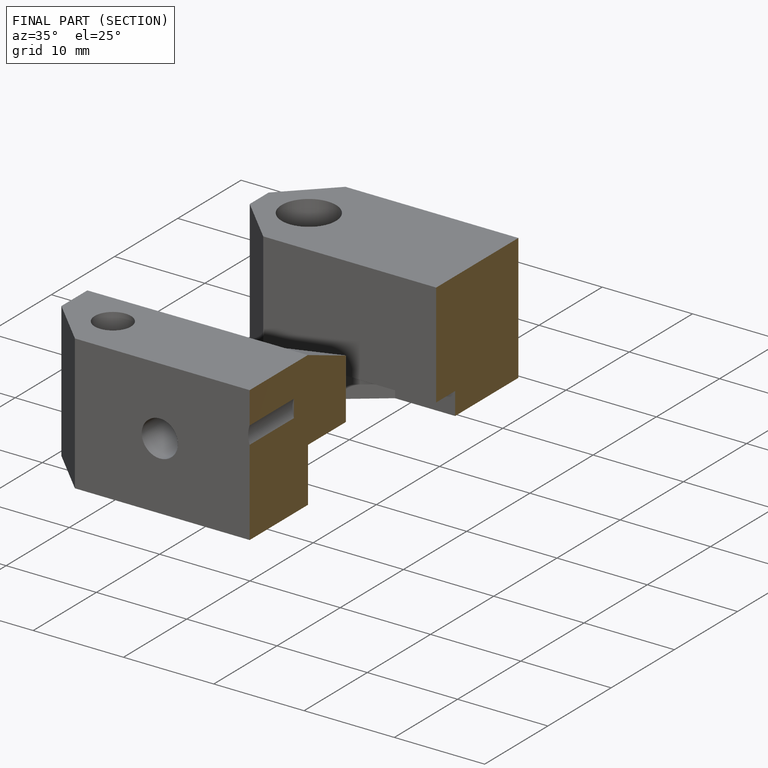
[diagram: finished part — half-section view (interior)]
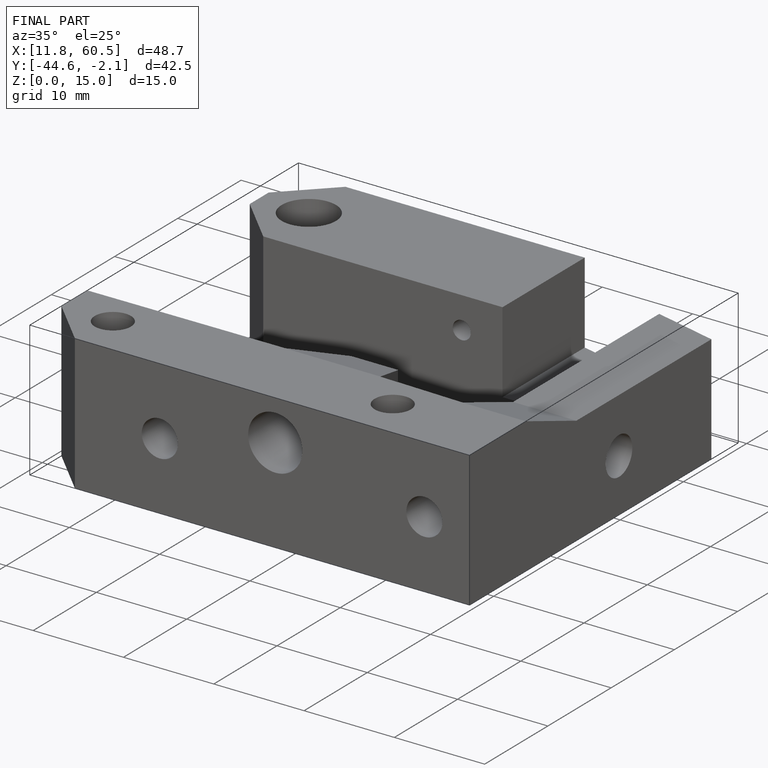
[diagram: finished part — iso view with bounding-box wireframe]
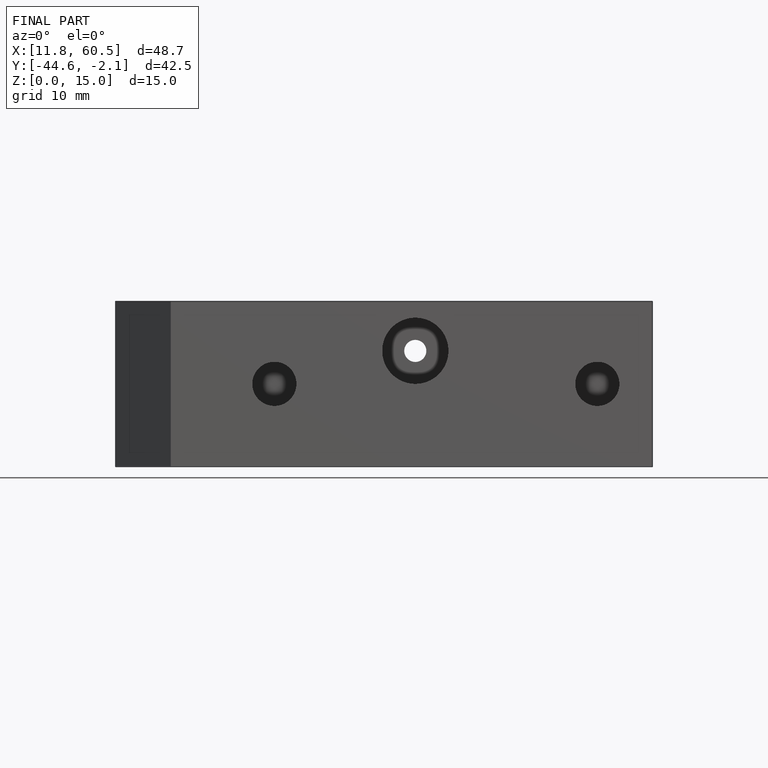
[diagram: finished part — front view with bounding-box wireframe]
